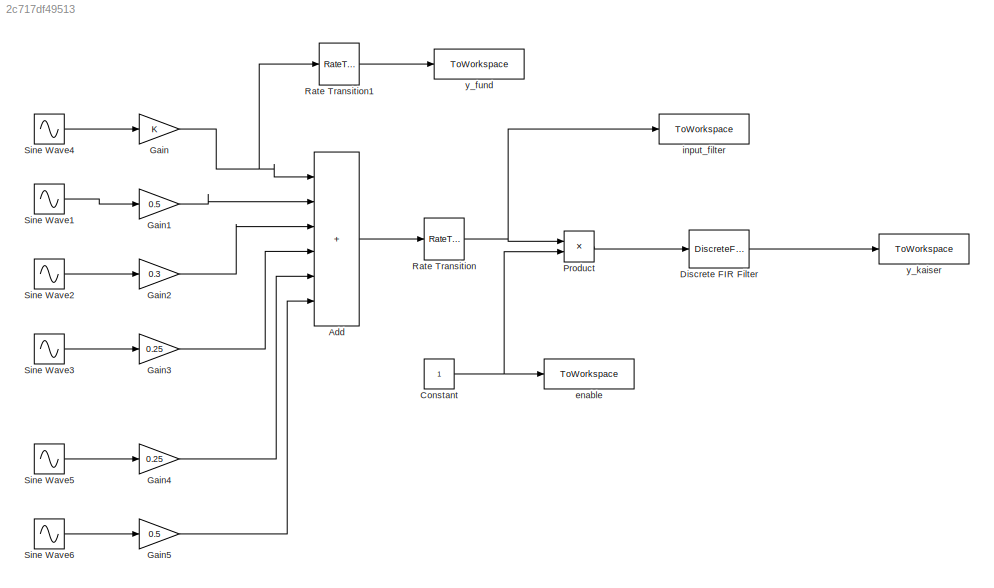
MODEL slx_2c717df49513
KIND model
CONFIG AbsTol = auto
CONFIG EnableMultiTasking = on
CONFIG FixedStep = 100e-6
CONFIG MaxStep = auto
CONFIG MinStep = auto
CONFIG RelTol = 1e-3
CONFIG SampleTimeConstraint = Unconstrained
CONFIG SolverName = FixedStepDiscrete
CONFIG StartTime = 0.0
CONFIG StopTime = Inf
BLOCK [Sum] Add
  IconShape = rectangular
  Inputs = 6
  Ports = [6, 1]
BLOCK [Constant] Constant
  SampleTime = 1/1e3
BLOCK [DiscreteFir] Discrete FIR Filter
  Coefficients = Num
  InputPortMap = u0
  OutputPortMap = o0
  Ports = [1, 1]
  SampleTime = 1/1e3
BLOCK [Gain] Gain
BLOCK [Gain] Gain1
  Gain = 0.5
BLOCK [Gain] Gain2
  Gain = 0.3
BLOCK [Gain] Gain3
  Gain = 0.25
BLOCK [Gain] Gain4
  Gain = 0.25
BLOCK [Gain] Gain5
  Gain = 0.5
BLOCK [Product] Product
  Ports = [2, 1]
BLOCK [RateTransition] Rate Transition
  OutPortSampleTime = 1e-3
BLOCK [RateTransition] Rate Transition1
  OutPortSampleTime = 1e-3
BLOCK [Sin] Sine Wave1
  Frequency = 150*2*pi
  Ports = [0, 1]
  SampleTime = 1/10e3
BLOCK [Sin] Sine Wave2
  Frequency = 250*2*pi
  Ports = [0, 1]
  SampleTime = 1/10e3
BLOCK [Sin] Sine Wave3
  Frequency = 350*2*pi
  Ports = [0, 1]
  SampleTime = 1/10e3
BLOCK [Sin] Sine Wave4
  Frequency = 50*2*pi
  Ports = [0, 1]
  SampleTime = 1/10e3
BLOCK [Sin] Sine Wave5
  Frequency = 750*2*pi
  Phase = pi/2
  Ports = [0, 1]
  SampleTime = 1/10e3
BLOCK [Sin] Sine Wave6
  Frequency = 1000*2*pi
  Phase = pi/2
  Ports = [0, 1]
  SampleTime = 1/10e3
BLOCK [ToWorkspace] enable
  ExtModeLoggingTrig = on
  FixptAsFi = on
  MaxDataPoints = inf
  Ports = [1]
  SampleTime = -1
  VariableName = enable
BLOCK [ToWorkspace] input_filter
  ExtModeUploadOption = log
  FixptAsFi = on
  MaxDataPoints = inf
  Ports = [1]
  SampleTime = -1
  VariableName = u
BLOCK [ToWorkspace] y_fund
  ExtModeUploadOption = log
  FixptAsFi = on
  MaxDataPoints = inf
  Ports = [1]
  SampleTime = -1
  VariableName = y_fund
BLOCK [ToWorkspace] y_kaiser
  ExtModeUploadOption = log
  FixptAsFi = on
  MaxDataPoints = inf
  Ports = [1]
  SampleTime = -1
  VariableName = y_kaiser
LINE Add:1 -> Rate Transition:1
NET Constant:1 -> Product:2, enable:1
LINE Discrete FIR Filter:1 -> y_kaiser:1
LINE Gain1:1 -> Add:2
LINE Gain2:1 -> Add:3
LINE Gain3:1 -> Add:4
LINE Gain4:1 -> Add:5
LINE Gain5:1 -> Add:6
NET Gain:1 -> Add:1, Rate Transition1:1
LINE Product:1 -> Discrete FIR Filter:1
LINE Rate Transition1:1 -> y_fund:1
NET Rate Transition:1 -> Product:1, input_filter:1
LINE Sine Wave1:1 -> Gain1:1
LINE Sine Wave2:1 -> Gain2:1
LINE Sine Wave3:1 -> Gain3:1
LINE Sine Wave4:1 -> Gain:1
LINE Sine Wave5:1 -> Gain4:1
LINE Sine Wave6:1 -> Gain5:1
note: NET lines group one-source signal fan-out (src -> all destinations, sorted); 1:1 wires keep LINE
